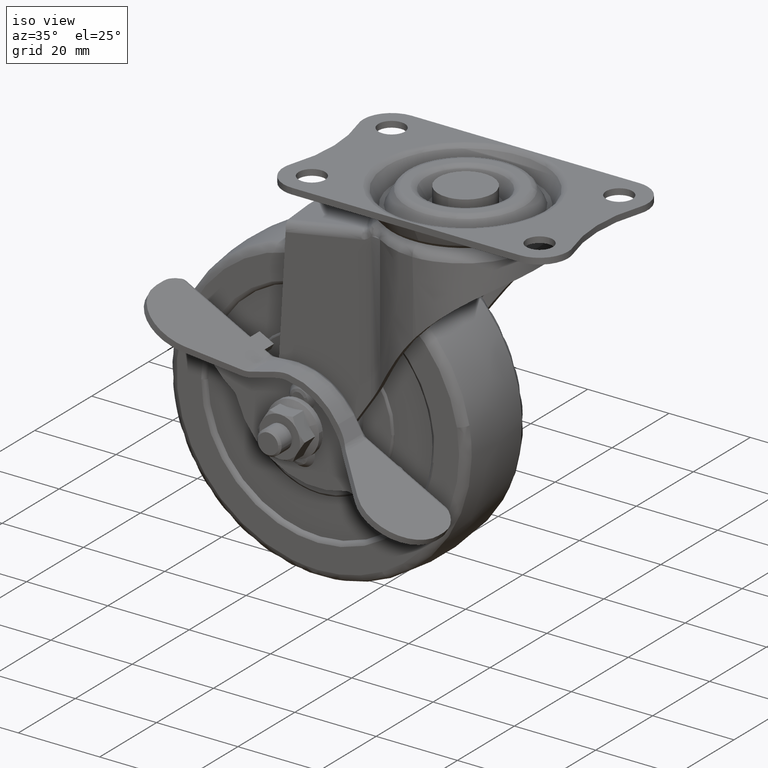
[diagram: clean part render]
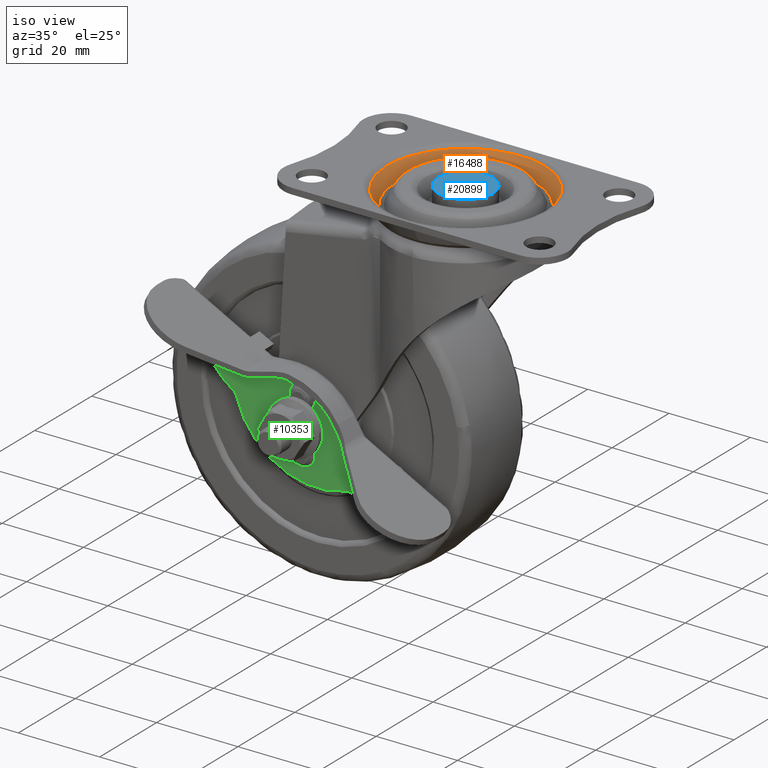
[diagram: same view with three faces highlighted in distinct colors, each labeled with its STEP entity id]
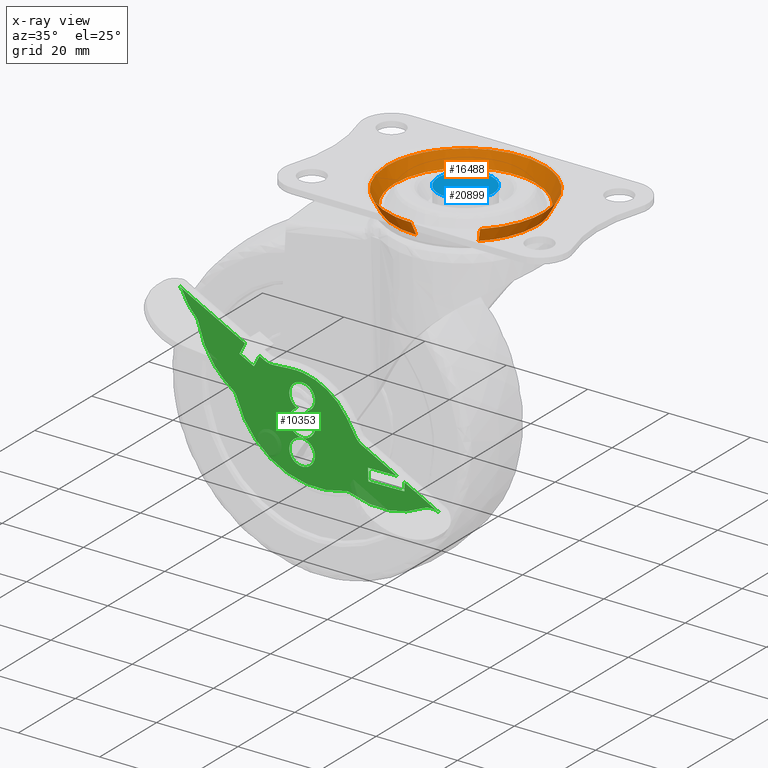
[diagram: x-ray of the same camera — body ghosted, the three highlighted faces saturated]
A machine part, iso view with three faces highlighted in distinct colors.
The next image is the same camera in x-ray (body ghosted, the three faces saturated) — at least one of them is partly hidden behind the body in this view.
Their STEP definitions:

[orange] entity #16488 — the highlighted face is a freeform B-spline surface patch.
#16318=CARTESIAN_POINT('',(12.036305669616750,-12.638677650356513,-2.887699195756595));
#16319=CARTESIAN_POINT('',(17.518445288866410,-7.417822272425098,-2.887699195756596));
#16320=CARTESIAN_POINT('',(17.452381792242459,0.152304628534755,-2.887699195756596));
#16321=CARTESIAN_POINT('',(17.300077163707716,17.604686420777217,-2.887699195756596));
#16322=CARTESIAN_POINT('',(-0.152304628534755,17.452381792242459,-2.887699195756596));
#16323=CARTESIAN_POINT('',(-17.604686420777217,17.300077163707716,-2.887699195756596));
#16324=CARTESIAN_POINT('',(-17.452381792242459,-0.152304628534755,-2.887699195756596));
#16325=CARTESIAN_POINT('',(-17.300077163707716,-17.604686420777217,-2.887699195756596));
#16326=CARTESIAN_POINT('',(0.152304628534755,-17.452381792242459,-2.887699195756596));
#16327=CARTESIAN_POINT('',(13.397120518879440,-14.067596181817935,0.797891420198383));
#16328=CARTESIAN_POINT('',(19.499066348139038,-8.256475175947527,0.797891420198383));
#16329=CARTESIAN_POINT('',(19.425533766758701,0.169524064947434,0.797891420198383));
#16330=CARTESIAN_POINT('',(19.256009701811269,19.595057831706143,0.797891420198383));
#16331=CARTESIAN_POINT('',(-0.169524064947434,19.425533766758701,0.797891420198383));
#16332=CARTESIAN_POINT('',(-19.595057831706143,19.256009701811269,0.797891420198383));
#16333=CARTESIAN_POINT('',(-19.425533766758701,-0.169524064947434,0.797891420198383));
#16334=CARTESIAN_POINT('',(-19.256009701811269,-19.595057831706143,0.797891420198383));
#16335=CARTESIAN_POINT('',(0.169524064947434,-19.425533766758701,0.797891420198383));
#16343=(BOUNDED_SURFACE()B_SPLINE_SURFACE(2,1,((#16318,#16327),(#16319,#16328),(#16320,#16329),(#16321,#16330),(#16322,#16331),(#16323,#16332),(#16324,#16333),(#16325,#16334),(#16326,#16335)),.UNSPECIFIED.,.F.,.F.,.U.)B_SPLINE_SURFACE_WITH_KNOTS((3,2,2,2,3),(2,2),(0.0,16.736981941445531,48.923485674994623,81.109989408543711,113.296493142092800),(0.0,4.180574531322593),.UNSPECIFIED.)GEOMETRIC_REPRESENTATION_ITEM()RATIONAL_B_SPLINE_SURFACE(((0.853787705168325,0.853787705168325),(0.847695526217005,0.847695526217005),(1.0,1.0),(0.707106781186548,0.707106781186548),(1.0,1.0),(0.707106781186548,0.707106781186548),(1.0,1.0),(0.707106781186548,0.707106781186548),(1.0,1.0)))REPRESENTATION_ITEM('')SURFACE());
#16344=CARTESIAN_POINT('',(13.363929755358660,-14.032744344994819,0.707998539736854));
#16345=VERTEX_POINT('',#16344);
#16346=CARTESIAN_POINT('',(19.378145740966652,0.0,0.707998539736826));
#16347=VERTEX_POINT('',#16346);
#16348=CARTESIAN_POINT('',(13.363929755358663,-14.032744344994814,0.707998539736854));
#16349=CARTESIAN_POINT('',(19.378145740966652,-8.305171890936085,0.707998539736826));
#16350=CARTESIAN_POINT('',(19.378145740966652,0.0,0.707998539736826));
#16358=(BOUNDED_CURVE()B_SPLINE_CURVE(2,(#16348,#16349,#16350),.UNSPECIFIED.,.F.,.U.)B_SPLINE_CURVE_WITH_KNOTS((3,3),(0.371317023849546,0.500000000000000),.UNSPECIFIED.)CURVE()GEOMETRIC_REPRESENTATION_ITEM()RATIONAL_B_SPLINE_CURVE((0.853680523245776,0.849238515635195,1.0))REPRESENTATION_ITEM(''));
#16359=EDGE_CURVE('',#16345,#16347,#16358,.T.);
#16360=ORIENTED_EDGE('',*,*,#16359,.T.);
#16361=CARTESIAN_POINT('',(7.086251146121231,18.036008036708530,0.707998966150701));
#16362=VERTEX_POINT('',#16361);
#16363=CARTESIAN_POINT('',(19.378145740966652,0.0,0.707998539736826));
#16364=CARTESIAN_POINT('',(19.378145740966655,13.206588110543299,0.707998539736826));
#16365=CARTESIAN_POINT('',(7.086251146121231,18.036008036708530,0.707998966150701));
#16373=(BOUNDED_CURVE()B_SPLINE_CURVE(2,(#16363,#16364,#16365),.UNSPECIFIED.,.F.,.U.)B_SPLINE_CURVE_WITH_KNOTS((3,3),(0.500000000000000,0.687908131197074),.UNSPECIFIED.)CURVE()GEOMETRIC_REPRESENTATION_ITEM()RATIONAL_B_SPLINE_CURVE((1.0,0.779851930449874,0.890644759586209))REPRESENTATION_ITEM(''));
#16374=EDGE_CURVE('',#16347,#16362,#16373,.T.);
#16375=ORIENTED_EDGE('',*,*,#16374,.T.);
#16376=CARTESIAN_POINT('',(-17.097168172810811,9.121369506637507,0.707998966144562));
#16377=VERTEX_POINT('',#16376);
#16378=CARTESIAN_POINT('',(7.086251146121232,18.036008036708527,0.707998966150701));
#16379=CARTESIAN_POINT('',(3.670226178802361,19.378145740966652,0.707998539736826));
#16380=CARTESIAN_POINT('',(0.0,19.378145740966652,0.707998539736826));
#16381=CARTESIAN_POINT('',(-11.625159623237881,19.378145740966648,0.707998539736826));
#16382=CARTESIAN_POINT('',(-17.097168172810818,9.121369506637507,0.707998966144562));
#16390=(BOUNDED_CURVE()B_SPLINE_CURVE(2,(#16378,#16379,#16380,#16381,#16382),.UNSPECIFIED.,.F.,.U.)B_SPLINE_CURVE_WITH_KNOTS((3,2,3),(0.687908131197074,0.750000000000000,0.919885466176732),.UNSPECIFIED.)CURVE()GEOMETRIC_REPRESENTATION_ITEM()RATIONAL_B_SPLINE_CURVE((0.890644759586209,0.927254850736674,1.0,0.800966795927492,0.872436381123038))REPRESENTATION_ITEM(''));
#16391=EDGE_CURVE('',#16362,#16377,#16390,.T.);
#16392=ORIENTED_EDGE('',*,*,#16391,.T.);
#16393=CARTESIAN_POINT('',(-19.378145740966652,0.0,0.707998539736826));
#16394=VERTEX_POINT('',#16393);
#16395=CARTESIAN_POINT('',(-17.097168172810811,9.121369506637507,0.707998966144562));
#16396=CARTESIAN_POINT('',(-19.378145740966652,4.845886370893225,0.707998539736826));
#16397=CARTESIAN_POINT('',(-19.378145740966652,0.0,0.707998539736826));
#16405=(BOUNDED_CURVE()B_SPLINE_CURVE(2,(#16395,#16396,#16397),.UNSPECIFIED.,.F.,.U.)B_SPLINE_CURVE_WITH_KNOTS((3,3),(0.919885466176732,1.0),.UNSPECIFIED.)CURVE()GEOMETRIC_REPRESENTATION_ITEM()RATIONAL_B_SPLINE_CURVE((0.872436381123038,0.906139985259055,1.0))REPRESENTATION_ITEM(''));
#16406=EDGE_CURVE('',#16377,#16394,#16405,.T.);
#16407=ORIENTED_EDGE('',*,*,#16406,.T.);
#16408=CARTESIAN_POINT('',(0.169104083966046,-19.377407881808011,0.707998542195917));
#16409=VERTEX_POINT('',#16408);
#16410=CARTESIAN_POINT('',(-19.378145740966652,0.0,0.707998539736826));
#16411=CARTESIAN_POINT('',(-19.378145740966659,-19.378145740966659,0.707998539736826));
#16412=CARTESIAN_POINT('',(0.0,-19.378145740966652,0.707998539736826));
#16413=CARTESIAN_POINT('',(0.084553655376278,-19.378145740966655,0.707998539736826));
#16414=CARTESIAN_POINT('',(0.169104083966046,-19.377407881808008,0.707998542195917));
#16422=(BOUNDED_CURVE()B_SPLINE_CURVE(2,(#16410,#16411,#16412,#16413,#16414),.UNSPECIFIED.,.F.,.U.)B_SPLINE_CURVE_WITH_KNOTS((3,2,3),(0.0,0.250000000000000,0.251539894466854),.UNSPECIFIED.)CURVE()GEOMETRIC_REPRESENTATION_ITEM()RATIONAL_B_SPLINE_CURVE((1.0,0.707106781186548,1.0,0.998195901411880,0.996414027795228))REPRESENTATION_ITEM(''));
#16423=EDGE_CURVE('',#16394,#16409,#16422,.T.);
#16424=ORIENTED_EDGE('',*,*,#16423,.T.);
#16425=CARTESIAN_POINT('',(0.152714371222914,-17.499333653623111,-2.799999240587877));
#16426=VERTEX_POINT('',#16425);
#16427=CARTESIAN_POINT('',(0.152714371222914,-17.499333653623111,-2.799999240587877));
#16428=CARTESIAN_POINT('',(0.169104083966046,-19.377407881808011,0.707998542195917));
#16429=QUASI_UNIFORM_CURVE('',1,(#16427,#16428),.UNSPECIFIED.,.F.,.U.);
#16430=EDGE_CURVE('',#16426,#16409,#16429,.T.);
#16431=ORIENTED_EDGE('',*,*,#16430,.F.);
#16432=CARTESIAN_POINT('',(-17.500000000000000,0.0,-2.799999240588125));
#16433=VERTEX_POINT('',#16432);
#16434=CARTESIAN_POINT('',(0.152714371222914,-17.499333653623115,-2.799999240587877));
#16435=CARTESIAN_POINT('',(0.076358639363640,-17.500000000000000,-2.799999240588126));
#16436=CARTESIAN_POINT('',(0.0,-17.500000000000000,-2.799999240588125));
#16437=CARTESIAN_POINT('',(-17.499999999999996,-17.499999999999996,-2.799999240588126));
#16438=CARTESIAN_POINT('',(-17.500000000000000,0.0,-2.799999240588125));
#16446=(BOUNDED_CURVE()B_SPLINE_CURVE(2,(#16434,#16435,#16436,#16437,#16438),.UNSPECIFIED.,.F.,.U.)B_SPLINE_CURVE_WITH_KNOTS((3,2,3),(0.748460105664985,0.750000000000000,1.0),.UNSPECIFIED.)CURVE()GEOMETRIC_REPRESENTATION_ITEM()RATIONAL_B_SPLINE_CURVE((0.996414028100342,0.998195901566340,1.0,0.707106781186548,1.0))REPRESENTATION_ITEM(''));
#16447=EDGE_CURVE('',#16426,#16433,#16446,.T.);
#16448=ORIENTED_EDGE('',*,*,#16447,.T.);
#16449=CARTESIAN_POINT('',(17.500000000000000,0.0,-2.799999240588125));
#16450=VERTEX_POINT('',#16449);
#16451=CARTESIAN_POINT('',(-17.500000000000000,0.0,-2.799999240588125));
#16452=CARTESIAN_POINT('',(-17.499999999999996,17.499999999999996,-2.799999240588126));
#16453=CARTESIAN_POINT('',(0.0,17.500000000000000,-2.799999240588125));
#16454=CARTESIAN_POINT('',(17.499999999999996,17.499999999999996,-2.799999240588126));
#16455=CARTESIAN_POINT('',(17.500000000000000,0.0,-2.799999240588125));
#16463=(BOUNDED_CURVE()B_SPLINE_CURVE(2,(#16451,#16452,#16453,#16454,#16455),.UNSPECIFIED.,.F.,.U.)B_SPLINE_CURVE_WITH_KNOTS((3,2,3),(0.0,0.250000000000000,0.500000000000000),.UNSPECIFIED.)CURVE()GEOMETRIC_REPRESENTATION_ITEM()RATIONAL_B_SPLINE_CURVE((1.0,0.707106781186548,1.0,0.707106781186548,1.0))REPRESENTATION_ITEM(''));
#16464=EDGE_CURVE('',#16433,#16450,#16463,.T.);
#16465=ORIENTED_EDGE('',*,*,#16464,.T.);
#16466=CARTESIAN_POINT('',(12.068686748718850,-12.672679281087230,-2.799999240588120));
#16467=VERTEX_POINT('',#16466);
#16468=CARTESIAN_POINT('',(17.500000000000000,0.0,-2.799999240588125));
#16469=CARTESIAN_POINT('',(17.500000000000004,-7.500227835740320,-2.799999240588125));
#16470=CARTESIAN_POINT('',(12.068686748718845,-12.672679281087259,-2.799999240588126));
#16478=(BOUNDED_CURVE()B_SPLINE_CURVE(2,(#16468,#16469,#16470),.UNSPECIFIED.,.F.,.U.)B_SPLINE_CURVE_WITH_KNOTS((3,3),(0.500000000000000,0.628682976150492),.UNSPECIFIED.)CURVE()GEOMETRIC_REPRESENTATION_ITEM()RATIONAL_B_SPLINE_CURVE((1.0,0.849238515635151,0.853680523245779))REPRESENTATION_ITEM(''));
#16479=EDGE_CURVE('',#16450,#16467,#16478,.T.);
#16480=ORIENTED_EDGE('',*,*,#16479,.T.);
#16481=CARTESIAN_POINT('',(12.068686748718850,-12.672679281087230,-2.799999240588120));
#16482=CARTESIAN_POINT('',(13.363929755358660,-14.032744344994819,0.707998539736854));
#16483=QUASI_UNIFORM_CURVE('',1,(#16481,#16482),.UNSPECIFIED.,.F.,.U.);
#16484=EDGE_CURVE('',#16467,#16345,#16483,.T.);
#16485=ORIENTED_EDGE('',*,*,#16484,.T.);
#16486=EDGE_LOOP('',(#16360,#16375,#16392,#16407,#16424,#16431,#16448,#16465,#16480,#16485));
#16487=FACE_OUTER_BOUND('',#16486,.T.);
#16488=ADVANCED_FACE('',(#16487),#16343,.F.);

[blue] entity #20899 — the highlighted face is a freeform B-spline surface patch.
#20048=CARTESIAN_POINT('',(-0.796731092696689,6.702814301913051,1.500000000000000));
#20049=VERTEX_POINT('',#20048);
#20050=CARTESIAN_POINT('',(6.750000000000000,-1.421085E-014,1.500000000000000));
#20051=VERTEX_POINT('',#20050);
#20052=CARTESIAN_POINT('',(-0.796731092696689,6.702814301913051,1.500000000000000));
#20053=CARTESIAN_POINT('',(-0.399762816506610,6.749999999999986,1.500000000000000));
#20054=CARTESIAN_POINT('',(0.0,6.749999999999986,1.500000000000000));
#20055=CARTESIAN_POINT('',(6.750000000000000,6.749999999999986,1.500000000000000));
#20056=CARTESIAN_POINT('',(6.750000000000000,-1.421085E-014,1.500000000000000));
#20064=(BOUNDED_CURVE()B_SPLINE_CURVE(2,(#20052,#20053,#20054,#20055,#20056),.UNSPECIFIED.,.F.,.U.)B_SPLINE_CURVE_WITH_KNOTS((3,2,3),(0.229562473073719,0.250000000000000,0.500000000000000),.UNSPECIFIED.)CURVE()GEOMETRIC_REPRESENTATION_ITEM()RATIONAL_B_SPLINE_CURVE((0.956026753321694,0.976055947815900,1.0,0.707106781186548,1.0))REPRESENTATION_ITEM(''));
#20065=EDGE_CURVE('',#20049,#20051,#20064,.T.);
#20067=CARTESIAN_POINT('',(0.412077641928033,-6.737409889343471,1.500000000000000));
#20068=VERTEX_POINT('',#20067);
#20069=CARTESIAN_POINT('',(6.750000000000000,-1.421085E-014,1.500000000000000));
#20070=CARTESIAN_POINT('',(6.749999999999999,-6.349765951485536,1.500000000000000));
#20071=CARTESIAN_POINT('',(0.412077641928033,-6.737409889343471,1.500000000000000));
#20079=(BOUNDED_CURVE()B_SPLINE_CURVE(2,(#20069,#20070,#20071),.UNSPECIFIED.,.F.,.U.)B_SPLINE_CURVE_WITH_KNOTS((3,3),(0.500000000000000,0.739332962238499),.UNSPECIFIED.)CURVE()GEOMETRIC_REPRESENTATION_ITEM()RATIONAL_B_SPLINE_CURVE((1.0,0.719603993287231,0.976072041665766))REPRESENTATION_ITEM(''));
#20080=EDGE_CURVE('',#20051,#20068,#20079,.T.);
#20147=CARTESIAN_POINT('',(-6.750000000000000,-1.421085E-014,1.500000000000000));
#20148=VERTEX_POINT('',#20147);
#20149=CARTESIAN_POINT('',(-6.750000000000000,-1.421085E-014,1.500000000000000));
#20150=CARTESIAN_POINT('',(-6.750000000000000,5.995178034384611,1.500000000000000));
#20151=CARTESIAN_POINT('',(-0.796731092696689,6.702814301913051,1.500000000000000));
#20159=(BOUNDED_CURVE()B_SPLINE_CURVE(2,(#20149,#20150,#20151),.UNSPECIFIED.,.F.,.U.)B_SPLINE_CURVE_WITH_KNOTS((3,3),(0.0,0.229562473073719),.UNSPECIFIED.)CURVE()GEOMETRIC_REPRESENTATION_ITEM()RATIONAL_B_SPLINE_CURVE((1.0,0.731050833370648,0.956026753321694))REPRESENTATION_ITEM(''));
#20160=EDGE_CURVE('',#20148,#20049,#20159,.T.);
#20194=CARTESIAN_POINT('',(0.412077641928033,-6.737409889343471,1.500000000000000));
#20195=CARTESIAN_POINT('',(0.206231152333413,-6.750000000000014,1.500000000000001));
#20196=CARTESIAN_POINT('',(0.0,-6.750000000000014,1.500000000000000));
#20197=CARTESIAN_POINT('',(-6.750000000000000,-6.750000000000014,1.500000000000000));
#20198=CARTESIAN_POINT('',(-6.750000000000000,-1.421085E-014,1.500000000000000));
#20206=(BOUNDED_CURVE()B_SPLINE_CURVE(2,(#20194,#20195,#20196,#20197,#20198),.UNSPECIFIED.,.F.,.U.)B_SPLINE_CURVE_WITH_KNOTS((3,2,3),(0.739332962238498,0.750000000000000,1.0),.UNSPECIFIED.)CURVE()GEOMETRIC_REPRESENTATION_ITEM()RATIONAL_B_SPLINE_CURVE((0.976072041665765,0.987502787899316,1.0,0.707106781186548,1.0))REPRESENTATION_ITEM(''));
#20207=EDGE_CURVE('',#20068,#20148,#20206,.T.);
#20888=CARTESIAN_POINT('',(-7.424324973834381,-7.424160811562288,1.500000000000000));
#20889=CARTESIAN_POINT('',(7.424325335932597,-7.424160811562288,1.500000000000000));
#20890=CARTESIAN_POINT('',(-7.424324973834381,7.424202211458406,1.500000000000000));
#20891=CARTESIAN_POINT('',(7.424325335932597,7.424202211458406,1.500000000000000));
#20892=B_SPLINE_SURFACE_WITH_KNOTS('',1,1,((#20888,#20890),(#20889,#20891)),.UNSPECIFIED.,.F.,.F.,.U.,(2,2),(2,2),(0.0,14.848650309766979),(0.0,14.848363023020690),.UNSPECIFIED.);
#20893=ORIENTED_EDGE('',*,*,#20207,.F.);
#20894=ORIENTED_EDGE('',*,*,#20080,.F.);
#20895=ORIENTED_EDGE('',*,*,#20065,.F.);
#20896=ORIENTED_EDGE('',*,*,#20160,.F.);
#20897=EDGE_LOOP('',(#20893,#20894,#20895,#20896));
#20898=FACE_OUTER_BOUND('',#20897,.T.);
#20899=ADVANCED_FACE('',(#20898),#20892,.T.);

[green] entity #10353 — the highlighted face is a freeform B-spline surface patch.
#6914=CARTESIAN_POINT('',(-26.808582526603271,-16.0,-55.400035469944498));
#6915=VERTEX_POINT('',#6914);
#6916=CARTESIAN_POINT('',(-31.492239594338439,-16.0,-50.914032959960103));
#6917=VERTEX_POINT('',#6916);
#6918=CARTESIAN_POINT('',(-26.808582526603278,-15.999999999999996,-55.400035469944498));
#6919=CARTESIAN_POINT('',(-27.122390084676674,-16.000000000000007,-55.686565493596206));
#6920=CARTESIAN_POINT('',(-27.499317139292959,-16.0,-55.882781276703788));
#6921=CARTESIAN_POINT('',(-29.863658807154184,-16.000000000000004,-57.113579507320466));
#6922=CARTESIAN_POINT('',(-31.533359656224910,-16.0,-55.035822331545013));
#6923=CARTESIAN_POINT('',(-33.203060505295639,-16.000000000000004,-52.958065155769532));
#6924=CARTESIAN_POINT('',(-31.492239594338361,-16.0,-50.914032959960181));
#6932=(BOUNDED_CURVE()B_SPLINE_CURVE(2,(#6918,#6919,#6920,#6921,#6922,#6923,#6924),.UNSPECIFIED.,.F.,.U.)B_SPLINE_CURVE_WITH_KNOTS((3,2,2,3),(0.450757098557296,0.500000000000000,0.750000000000000,1.0),.UNSPECIFIED.)CURVE()GEOMETRIC_REPRESENTATION_ITEM()RATIONAL_B_SPLINE_CURVE((0.928254768791798,0.955328334761395,1.0,0.773207589673700,1.0,0.773207589673700,1.0))REPRESENTATION_ITEM(''));
#6933=EDGE_CURVE('',#6915,#6917,#6932,.T.);
#6991=CARTESIAN_POINT('',(-25.760018665370559,-16.0,-53.254988061156403));
#6992=VERTEX_POINT('',#6991);
#6998=CARTESIAN_POINT('',(-29.279230686288798,-16.0,-49.762013568942898));
#6999=VERTEX_POINT('',#6998);
#7000=CARTESIAN_POINT('',(-29.279230686288798,-16.0,-49.762013568942869));
#7001=CARTESIAN_POINT('',(-26.623570952135946,-16.000000000000004,-49.533000068744549));
#7002=CARTESIAN_POINT('',(-25.879273211783840,-16.0,-52.092491557415833));
#7003=CARTESIAN_POINT('',(-25.713415775583979,-16.0,-52.662842202421885));
#7004=CARTESIAN_POINT('',(-25.760018665370552,-16.000000000000004,-53.254988061156411));
#7012=(BOUNDED_CURVE()B_SPLINE_CURVE(2,(#7000,#7001,#7002,#7003,#7004),.UNSPECIFIED.,.F.,.U.)B_SPLINE_CURVE_WITH_KNOTS((3,2,3),(0.0,0.250000000000000,0.317629352993663),.UNSPECIFIED.)CURVE()GEOMETRIC_REPRESENTATION_ITEM()RATIONAL_B_SPLINE_CURVE((1.0,0.773207589673700,1.0,0.938648704103036,0.910490595780748))REPRESENTATION_ITEM(''));
#7013=EDGE_CURVE('',#6999,#6992,#7012,.T.);
#7073=CARTESIAN_POINT('',(-25.760018665370552,-16.000000000000004,-53.254988061156411));
#7074=CARTESIAN_POINT('',(-25.860723857430365,-16.000000000000004,-54.534568849051155));
#7075=CARTESIAN_POINT('',(-26.808582526603271,-16.0,-55.400035469944505));
#7083=(BOUNDED_CURVE()B_SPLINE_CURVE(2,(#7073,#7074,#7075),.UNSPECIFIED.,.F.,.U.)B_SPLINE_CURVE_WITH_KNOTS((3,3),(0.317629352993663,0.450757098557296),.UNSPECIFIED.)CURVE()GEOMETRIC_REPRESENTATION_ITEM()RATIONAL_B_SPLINE_CURVE((0.910490595780748,0.855061624271379,0.928254768791798))REPRESENTATION_ITEM(''));
#7084=EDGE_CURVE('',#6992,#6915,#7083,.T.);
#7546=CARTESIAN_POINT('',(2.275743760162005,-16.0,-49.192040147086999));
#7547=VERTEX_POINT('',#7546);
#7548=CARTESIAN_POINT('',(6.077288059649920,-16.0,-47.099994405267502));
#7549=VERTEX_POINT('',#7548);
#7550=CARTESIAN_POINT('',(2.275743760162005,-16.0,-49.192040147086999));
#7551=CARTESIAN_POINT('',(3.600876472414611,-15.999999999999996,-47.099996348106416));
#7552=CARTESIAN_POINT('',(6.077288059649920,-16.0,-47.099994405267502));
#7560=(BOUNDED_CURVE()B_SPLINE_CURVE(2,(#7550,#7551,#7552),.UNSPECIFIED.,.F.,.U.)CURVE()GEOMETRIC_REPRESENTATION_ITEM()QUASI_UNIFORM_CURVE()RATIONAL_B_SPLINE_CURVE((1.0,0.876099836313436,1.0))REPRESENTATION_ITEM(''));
#7561=EDGE_CURVE('',#7547,#7549,#7560,.T.);
#7624=CARTESIAN_POINT('',(-66.530678117752501,-16.0,-47.099988604228301));
#7625=VERTEX_POINT('',#7624);
#7626=CARTESIAN_POINT('',(-64.604541877868002,-16.0,-47.799989141027503));
#7627=VERTEX_POINT('',#7626);
#7628=CARTESIAN_POINT('',(-66.530678117752501,-16.0,-47.099988604228329));
#7629=CARTESIAN_POINT('',(-65.440412211166233,-16.0,-47.099988760330248));
#7630=CARTESIAN_POINT('',(-64.604541877868058,-16.0,-47.799989141027567));
#7638=(BOUNDED_CURVE()B_SPLINE_CURVE(2,(#7628,#7629,#7630),.UNSPECIFIED.,.F.,.U.)CURVE()GEOMETRIC_REPRESENTATION_ITEM()QUASI_UNIFORM_CURVE()RATIONAL_B_SPLINE_CURVE((1.0,0.939858122181283,1.0))REPRESENTATION_ITEM(''));
#7639=EDGE_CURVE('',#7625,#7627,#7638,.T.);
#8311=CARTESIAN_POINT('',(-3.777901921407860,-16.0,-47.099993892517503));
#8312=VERTEX_POINT('',#8311);
#8333=CARTESIAN_POINT('',(-2.807771750129955,-16.0,-48.887073215302387));
#8334=VERTEX_POINT('',#8333);
#8348=CARTESIAN_POINT('',(-3.777901921407860,-16.0,-47.099993892517503));
#8349=CARTESIAN_POINT('',(-2.807771750129955,-16.0,-48.887073215302387));
#8350=QUASI_UNIFORM_CURVE('',1,(#8348,#8349),.UNSPECIFIED.,.F.,.U.);
#8351=EDGE_CURVE('',#8312,#8334,#8350,.T.);
#8372=CARTESIAN_POINT('',(-10.592231666412140,-16.0,-53.112922012349699));
#8373=VERTEX_POINT('',#8372);
#8394=CARTESIAN_POINT('',(-12.023508399752380,-16.0,-50.476363402935412));
#8395=VERTEX_POINT('',#8394);
#8409=CARTESIAN_POINT('',(-10.592231666412140,-16.0,-53.112922012349699));
#8410=CARTESIAN_POINT('',(-12.023508399752380,-16.0,-50.476363402935412));
#8411=QUASI_UNIFORM_CURVE('',1,(#8409,#8410),.UNSPECIFIED.,.F.,.U.);
#8412=EDGE_CURVE('',#8373,#8395,#8411,.T.);
#8682=CARTESIAN_POINT('',(-5.803881771787300,-16.0,-47.099997298959202));
#8683=VERTEX_POINT('',#8682);
#8703=CARTESIAN_POINT('',(-43.899998974616402,-16.0,-50.099990126506199));
#8704=VERTEX_POINT('',#8703);
#8705=CARTESIAN_POINT('',(-47.899996659844000,-16.0,-50.099991185185601));
#8706=VERTEX_POINT('',#8705);
#8707=CARTESIAN_POINT('',(-43.899998974616402,-16.0,-50.099990126506199));
#8708=CARTESIAN_POINT('',(-47.899996659844000,-16.0,-50.099991185185601));
#8709=QUASI_UNIFORM_CURVE('',1,(#8707,#8708),.UNSPECIFIED.,.F.,.U.);
#8710=EDGE_CURVE('',#8704,#8706,#8709,.T.);
#8739=CARTESIAN_POINT('',(-43.899996840231850,-16.0,-47.099991844440098));
#8740=VERTEX_POINT('',#8739);
#8741=CARTESIAN_POINT('',(-43.899996840231850,-16.0,-47.099991844440098));
#8742=CARTESIAN_POINT('',(-43.899998974616402,-16.0,-50.099990126506199));
#8743=QUASI_UNIFORM_CURVE('',1,(#8741,#8742),.UNSPECIFIED.,.F.,.U.);
#8744=EDGE_CURVE('',#8740,#8704,#8743,.T.);
#8765=CARTESIAN_POINT('',(-47.899996834202902,-16.0,-47.099991271728797));
#8766=VERTEX_POINT('',#8765);
#8767=CARTESIAN_POINT('',(-47.899996659844000,-16.0,-50.099991185185601));
#8768=CARTESIAN_POINT('',(-47.899996834202902,-16.0,-47.099991271728797));
#8769=QUASI_UNIFORM_CURVE('',1,(#8767,#8768),.UNSPECIFIED.,.F.,.U.);
#8770=EDGE_CURVE('',#8706,#8766,#8769,.T.);
#8834=CARTESIAN_POINT('',(-25.998635266198150,-16.0,-55.609620024513177));
#8835=VERTEX_POINT('',#8834);
#8836=CARTESIAN_POINT('',(-25.998635266198150,-16.0,-61.921513559737022));
#8837=VERTEX_POINT('',#8836);
#8838=CARTESIAN_POINT('',(-25.998635266198150,-16.0,-55.609620024513177));
#8839=CARTESIAN_POINT('',(-29.154582033810058,-15.999999999999998,-55.609620024513191));
#8840=CARTESIAN_POINT('',(-29.154582033810069,-16.0,-58.765566792125099));
#8841=CARTESIAN_POINT('',(-29.154582033810058,-15.999999999999998,-61.921513559737015));
#8842=CARTESIAN_POINT('',(-25.998635266198150,-16.0,-61.921513559737022));
#8850=(BOUNDED_CURVE()B_SPLINE_CURVE(2,(#8838,#8839,#8840,#8841,#8842),.UNSPECIFIED.,.F.,.U.)B_SPLINE_CURVE_WITH_KNOTS((3,2,3),(0.0,0.250000000000000,0.500000000000000),.UNSPECIFIED.)CURVE()GEOMETRIC_REPRESENTATION_ITEM()RATIONAL_B_SPLINE_CURVE((1.0,0.707106781186548,1.0,0.707106781186548,1.0))REPRESENTATION_ITEM(''));
#8851=EDGE_CURVE('',#8835,#8837,#8850,.T.);
#8853=CARTESIAN_POINT('',(-25.998635266198150,-16.0,-61.921513559737022));
#8854=CARTESIAN_POINT('',(-22.842688498586227,-15.999999999999998,-61.921513559737015));
#8855=CARTESIAN_POINT('',(-22.842688498586231,-16.0,-58.765566792125099));
#8856=CARTESIAN_POINT('',(-22.842688498586227,-15.999999999999998,-55.609620024513191));
#8857=CARTESIAN_POINT('',(-25.998635266198150,-16.0,-55.609620024513177));
#8865=(BOUNDED_CURVE()B_SPLINE_CURVE(2,(#8853,#8854,#8855,#8856,#8857),.UNSPECIFIED.,.F.,.U.)B_SPLINE_CURVE_WITH_KNOTS((3,2,3),(0.500000000000000,0.750000000000000,1.0),.UNSPECIFIED.)CURVE()GEOMETRIC_REPRESENTATION_ITEM()RATIONAL_B_SPLINE_CURVE((1.0,0.707106781186548,1.0,0.707106781186548,1.0))REPRESENTATION_ITEM(''));
#8866=EDGE_CURVE('',#8837,#8835,#8865,.T.);
#9483=CARTESIAN_POINT('',(-15.504377828213100,-16.0,-47.099993282407503));
#9484=VERTEX_POINT('',#9483);
#9492=CARTESIAN_POINT('',(-17.597605191460850,-16.0,-46.505894541268702));
#9493=VERTEX_POINT('',#9492);
#9499=CARTESIAN_POINT('',(-17.597605191460850,-16.0,-46.505894541268688));
#9500=CARTESIAN_POINT('',(-16.634951958931463,-16.000000000000004,-47.098767311729965));
#9501=CARTESIAN_POINT('',(-15.504377828213100,-16.0,-47.099993282407468));
#9509=(BOUNDED_CURVE()B_SPLINE_CURVE(2,(#9499,#9500,#9501),.UNSPECIFIED.,.F.,.U.)CURVE()GEOMETRIC_REPRESENTATION_ITEM()QUASI_UNIFORM_CURVE()RATIONAL_B_SPLINE_CURVE((1.0,0.962299471320009,1.0))REPRESENTATION_ITEM(''));
#9510=EDGE_CURVE('',#9493,#9484,#9509,.T.);
#9523=CARTESIAN_POINT('',(-21.134027603965201,-16.0,-44.327903341176047));
#9524=VERTEX_POINT('',#9523);
#9530=CARTESIAN_POINT('',(-21.134027603965201,-16.0,-44.327903341176047));
#9531=CARTESIAN_POINT('',(-17.597605191460850,-16.0,-46.505894541268702));
#9532=QUASI_UNIFORM_CURVE('',1,(#9530,#9531),.UNSPECIFIED.,.F.,.U.);
#9533=EDGE_CURVE('',#9524,#9493,#9532,.T.);
#9554=CARTESIAN_POINT('',(-36.865975888751500,-16.0,-44.327897952493451));
#9555=VERTEX_POINT('',#9554);
#9561=CARTESIAN_POINT('',(-21.134027603965201,-16.0,-44.327903341176047));
#9562=CARTESIAN_POINT('',(-29.000000930955014,-16.000000000000007,-39.483470206234450));
#9563=CARTESIAN_POINT('',(-36.865975888751500,-16.0,-44.327897952493451));
#9571=(BOUNDED_CURVE()B_SPLINE_CURVE(2,(#9561,#9562,#9563),.UNSPECIFIED.,.F.,.U.)CURVE()GEOMETRIC_REPRESENTATION_ITEM()QUASI_UNIFORM_CURVE()RATIONAL_B_SPLINE_CURVE((1.0,0.851473139312523,1.0))REPRESENTATION_ITEM(''));
#9572=EDGE_CURVE('',#9524,#9555,#9571,.T.);
#9586=CARTESIAN_POINT('',(-40.402407463981952,-16.0,-46.505887199888598));
#9587=VERTEX_POINT('',#9586);
#9593=CARTESIAN_POINT('',(-40.402407463981952,-16.0,-46.505887199888598));
#9594=CARTESIAN_POINT('',(-36.865975888751500,-16.0,-44.327897952493451));
#9595=QUASI_UNIFORM_CURVE('',1,(#9593,#9594),.UNSPECIFIED.,.F.,.U.);
#9596=EDGE_CURVE('',#9587,#9555,#9595,.T.);
#9617=CARTESIAN_POINT('',(-42.499998825408952,-16.0,-47.099992044888801));
#9618=VERTEX_POINT('',#9617);
#9624=CARTESIAN_POINT('',(-42.499998825408952,-16.0,-47.099992044888801));
#9625=CARTESIAN_POINT('',(-41.367067843727355,-15.999999999999996,-47.099992902422080));
#9626=CARTESIAN_POINT('',(-40.402407463981952,-16.0,-46.505887199888598));
#9634=(BOUNDED_CURVE()B_SPLINE_CURVE(2,(#9624,#9625,#9626),.UNSPECIFIED.,.F.,.U.)CURVE()GEOMETRIC_REPRESENTATION_ITEM()QUASI_UNIFORM_CURVE()RATIONAL_B_SPLINE_CURVE((1.0,0.962152105659305,1.0))REPRESENTATION_ITEM(''));
#9635=EDGE_CURVE('',#9618,#9587,#9634,.T.);
#9785=CARTESIAN_POINT('',(-12.558907731843060,-16.0,-58.383514182393398));
#9786=VERTEX_POINT('',#9785);
#9787=CARTESIAN_POINT('',(-12.558907731843060,-16.0,-58.383514182393412));
#9788=CARTESIAN_POINT('',(-2.913279146842478,-16.0,-57.384163980196178));
#9789=CARTESIAN_POINT('',(2.275743760161961,-16.0,-49.192040147086992));
#9797=(BOUNDED_CURVE()B_SPLINE_CURVE(2,(#9787,#9788,#9789),.UNSPECIFIED.,.F.,.U.)CURVE()GEOMETRIC_REPRESENTATION_ITEM()QUASI_UNIFORM_CURVE()RATIONAL_B_SPLINE_CURVE((1.0,0.899808979787183,1.0))REPRESENTATION_ITEM(''));
#9798=EDGE_CURVE('',#9786,#7547,#9797,.T.);
#9838=CARTESIAN_POINT('',(-14.106925262072680,-16.0,-59.141161822602797));
#9839=VERTEX_POINT('',#9838);
#9840=CARTESIAN_POINT('',(-12.558907731843060,-16.0,-58.383514182393398));
#9841=CARTESIAN_POINT('',(-13.472019886781137,-15.999999999999996,-58.478121836030141));
#9842=CARTESIAN_POINT('',(-14.106925262072680,-16.0,-59.141161822602797));
#9850=(BOUNDED_CURVE()B_SPLINE_CURVE(2,(#9840,#9841,#9842),.UNSPECIFIED.,.F.,.U.)CURVE()GEOMETRIC_REPRESENTATION_ITEM()QUASI_UNIFORM_CURVE()RATIONAL_B_SPLINE_CURVE((1.0,0.938714369057936,1.0))REPRESENTATION_ITEM(''));
#9851=EDGE_CURVE('',#9786,#9839,#9850,.T.);
#9875=CARTESIAN_POINT('',(-43.914847168723647,-16.0,-59.118383250534912));
#9876=VERTEX_POINT('',#9875);
#9900=CARTESIAN_POINT('',(-43.914847168723647,-16.0,-59.118383250534912));
#9901=CARTESIAN_POINT('',(-37.829106270078050,-16.0,-65.493254600002757));
#9902=CARTESIAN_POINT('',(-29.015753779283461,-16.0,-65.499989574198551));
#9903=CARTESIAN_POINT('',(-20.202401288488865,-16.0,-65.506724548394331));
#9904=CARTESIAN_POINT('',(-14.106925262072680,-16.0,-59.141161822602797));
#9912=(BOUNDED_CURVE()B_SPLINE_CURVE(2,(#9900,#9901,#9902,#9903,#9904),.UNSPECIFIED.,.F.,.U.)B_SPLINE_CURVE_WITH_KNOTS((3,2,3),(0.0,0.500000000000000,1.0),.UNSPECIFIED.)CURVE()GEOMETRIC_REPRESENTATION_ITEM()RATIONAL_B_SPLINE_CURVE((1.0,0.919528690102147,1.0,0.919528690102147,1.0))REPRESENTATION_ITEM(''));
#9913=EDGE_CURVE('',#9876,#9839,#9912,.T.);
#9948=CARTESIAN_POINT('',(-45.439462587460703,-16.0,-58.360817627816097));
#9949=VERTEX_POINT('',#9948);
#9950=CARTESIAN_POINT('',(-43.914847168723647,-16.0,-59.118383250534912));
#9951=CARTESIAN_POINT('',(-44.539986304078958,-15.999999999999996,-58.463546849420688));
#9952=CARTESIAN_POINT('',(-45.439462587460703,-16.0,-58.360817627816097));
#9960=(BOUNDED_CURVE()B_SPLINE_CURVE(2,(#9950,#9951,#9952),.UNSPECIFIED.,.F.,.U.)CURVE()GEOMETRIC_REPRESENTATION_ITEM()QUASI_UNIFORM_CURVE()RATIONAL_B_SPLINE_CURVE((1.0,0.940247724918278,1.0))REPRESENTATION_ITEM(''));
#9961=EDGE_CURVE('',#9876,#9949,#9960,.T.);
#9985=CARTESIAN_POINT('',(-58.580566651632402,-16.0,-51.238109884184503));
#9986=VERTEX_POINT('',#9985);
#10008=CARTESIAN_POINT('',(-58.580566651632402,-16.0,-51.238109884184503));
#10009=CARTESIAN_POINT('',(-53.444767560068463,-16.000000000000007,-57.446524642103022));
#10010=CARTESIAN_POINT('',(-45.439462587460703,-16.0,-58.360817627816097));
#10018=(BOUNDED_CURVE()B_SPLINE_CURVE(2,(#10008,#10009,#10010),.UNSPECIFIED.,.F.,.U.)CURVE()GEOMETRIC_REPRESENTATION_ITEM()QUASI_UNIFORM_CURVE()RATIONAL_B_SPLINE_CURVE((1.0,0.927556747545519,1.0))REPRESENTATION_ITEM(''));
#10019=EDGE_CURVE('',#9986,#9949,#10018,.T.);
#10054=CARTESIAN_POINT('',(-60.288964084798302,-16.0,-50.111504481992398));
#10055=VERTEX_POINT('',#10054);
#10056=CARTESIAN_POINT('',(-58.580566651632402,-16.0,-51.238109884184503));
#10057=CARTESIAN_POINT('',(-59.262562802235074,-15.999999999999998,-50.413676423478485));
#10058=CARTESIAN_POINT('',(-60.288964084798302,-16.0,-50.111504481992398));
#10066=(BOUNDED_CURVE()B_SPLINE_CURVE(2,(#10056,#10057,#10058),.UNSPECIFIED.,.F.,.U.)CURVE()GEOMETRIC_REPRESENTATION_ITEM()QUASI_UNIFORM_CURVE()RATIONAL_B_SPLINE_CURVE((1.0,0.956312378166762,1.0))REPRESENTATION_ITEM(''));
#10067=EDGE_CURVE('',#9986,#10055,#10066,.T.);
#10091=CARTESIAN_POINT('',(-64.604541877868002,-16.0,-47.799989141027503));
#10092=CARTESIAN_POINT('',(-62.687573615794278,-16.000000000000004,-49.405357126922731));
#10093=CARTESIAN_POINT('',(-60.288964084798302,-16.0,-50.111504481992398));
#10101=(BOUNDED_CURVE()B_SPLINE_CURVE(2,(#10091,#10092,#10093),.UNSPECIFIED.,.F.,.U.)CURVE()GEOMETRIC_REPRESENTATION_ITEM()QUASI_UNIFORM_CURVE()RATIONAL_B_SPLINE_CURVE((1.0,0.978973996095359,1.0))REPRESENTATION_ITEM(''));
#10102=EDGE_CURVE('',#7627,#10055,#10101,.T.);
#10145=CARTESIAN_POINT('',(-3.777901921407860,-16.0,-47.099993892517503));
#10146=CARTESIAN_POINT('',(6.077288059649920,-16.0,-47.099994405267502));
#10147=QUASI_UNIFORM_CURVE('',1,(#10145,#10146),.UNSPECIFIED.,.F.,.U.);
#10148=EDGE_CURVE('',#8312,#7549,#10147,.T.);
#10160=CARTESIAN_POINT('',(-15.504377828213100,-16.0,-47.099993282407503));
#10161=CARTESIAN_POINT('',(-5.803881771787300,-16.0,-47.099997298959202));
#10162=QUASI_UNIFORM_CURVE('',1,(#10160,#10161),.UNSPECIFIED.,.F.,.U.);
#10163=EDGE_CURVE('',#9484,#8683,#10162,.T.);
#10178=CARTESIAN_POINT('',(-66.530678117752501,-16.0,-47.099988604228301));
#10179=CARTESIAN_POINT('',(-47.899996834202902,-16.0,-47.099991271728797));
#10180=QUASI_UNIFORM_CURVE('',1,(#10178,#10179),.UNSPECIFIED.,.F.,.U.);
#10181=EDGE_CURVE('',#7625,#8766,#10180,.T.);
#10188=CARTESIAN_POINT('',(-43.899996840231850,-16.0,-47.099991844440098));
#10189=CARTESIAN_POINT('',(-42.499998825408952,-16.0,-47.099992044888801));
#10190=QUASI_UNIFORM_CURVE('',1,(#10188,#10189),.UNSPECIFIED.,.F.,.U.);
#10191=EDGE_CURVE('',#8740,#9618,#10190,.T.);
#10274=CARTESIAN_POINT('',(-29.279230686288830,-16.0,-49.762013568942869));
#10275=CARTESIAN_POINT('',(-27.653037111794170,-16.000000000000004,-47.769321202910646));
#10276=CARTESIAN_POINT('',(-29.276595680406668,-16.0,-45.774481364313118));
#10277=CARTESIAN_POINT('',(-30.900154249019185,-16.000000000000004,-43.779641525715604));
#10278=CARTESIAN_POINT('',(-33.181571067355357,-16.0,-44.967271816834717));
#10279=CARTESIAN_POINT('',(-35.462987885691554,-16.000000000000004,-46.154902107953816));
#10280=CARTESIAN_POINT('',(-34.760145918970593,-16.0,-48.629036618684140));
#10281=CARTESIAN_POINT('',(-34.057303952249633,-16.000000000000004,-51.103171129414456));
#10282=CARTESIAN_POINT('',(-31.492239594338439,-16.0,-50.914032959960117));
#10290=(BOUNDED_CURVE()B_SPLINE_CURVE(2,(#10274,#10275,#10276,#10277,#10278,#10279,#10280,#10281,#10282),.UNSPECIFIED.,.F.,.U.)B_SPLINE_CURVE_WITH_KNOTS((3,2,2,2,3),(0.0,0.250000000000000,0.500000000000000,0.750000000000000,1.0),.UNSPECIFIED.)CURVE()GEOMETRIC_REPRESENTATION_ITEM()RATIONAL_B_SPLINE_CURVE((1.0,0.775172930146005,1.0,0.775172930146005,1.0,0.775172930146005,1.0,0.775172930146005,1.0))REPRESENTATION_ITEM(''));
#10291=EDGE_CURVE('',#6999,#6917,#10290,.T.);
#10303=CARTESIAN_POINT('',(-70.157445887585425,-16.0,-40.931168764983717));
#10304=CARTESIAN_POINT('',(9.704057776980257,-16.0,-40.931168764983717));
#10305=CARTESIAN_POINT('',(-70.157445887585425,-16.0,-66.668821474437806));
#10306=CARTESIAN_POINT('',(9.704057776980257,-16.0,-66.668821474437806));
#10307=B_SPLINE_SURFACE_WITH_KNOTS('',1,1,((#10303,#10305),(#10304,#10306)),.UNSPECIFIED.,.F.,.F.,.U.,(2,2),(2,2),(0.0,79.861503664565674),(0.0,25.737652709454078),.UNSPECIFIED.);
#10308=ORIENTED_EDGE('',*,*,#8412,.T.);
#10309=CARTESIAN_POINT('',(-12.023508399752380,-16.0,-50.476363402935412));
#10310=CARTESIAN_POINT('',(-5.803881771787300,-16.0,-47.099997298959202));
#10311=QUASI_UNIFORM_CURVE('',1,(#10309,#10310),.UNSPECIFIED.,.F.,.U.);
#10312=EDGE_CURVE('',#8395,#8683,#10311,.T.);
#10313=ORIENTED_EDGE('',*,*,#10312,.T.);
#10314=ORIENTED_EDGE('',*,*,#10163,.F.);
#10315=ORIENTED_EDGE('',*,*,#9510,.F.);
#10316=ORIENTED_EDGE('',*,*,#9533,.F.);
#10317=ORIENTED_EDGE('',*,*,#9572,.T.);
#10318=ORIENTED_EDGE('',*,*,#9596,.F.);
#10319=ORIENTED_EDGE('',*,*,#9635,.F.);
#10320=ORIENTED_EDGE('',*,*,#10191,.F.);
#10321=ORIENTED_EDGE('',*,*,#8744,.T.);
#10322=ORIENTED_EDGE('',*,*,#8710,.T.);
#10323=ORIENTED_EDGE('',*,*,#8770,.T.);
#10324=ORIENTED_EDGE('',*,*,#10181,.F.);
#10325=ORIENTED_EDGE('',*,*,#7639,.T.);
#10326=ORIENTED_EDGE('',*,*,#10102,.T.);
#10327=ORIENTED_EDGE('',*,*,#10067,.F.);
#10328=ORIENTED_EDGE('',*,*,#10019,.T.);
#10329=ORIENTED_EDGE('',*,*,#9961,.F.);
#10330=ORIENTED_EDGE('',*,*,#9913,.T.);
#10331=ORIENTED_EDGE('',*,*,#9851,.F.);
#10332=ORIENTED_EDGE('',*,*,#9798,.T.);
#10333=ORIENTED_EDGE('',*,*,#7561,.T.);
#10334=ORIENTED_EDGE('',*,*,#10148,.F.);
#10335=ORIENTED_EDGE('',*,*,#8351,.T.);
#10336=CARTESIAN_POINT('',(-2.807771750129955,-16.0,-48.887073215302387));
#10337=CARTESIAN_POINT('',(-10.592231666412140,-16.0,-53.112922012349699));
#10338=QUASI_UNIFORM_CURVE('',1,(#10336,#10337),.UNSPECIFIED.,.F.,.U.);
#10339=EDGE_CURVE('',#8334,#8373,#10338,.T.);
#10340=ORIENTED_EDGE('',*,*,#10339,.T.);
#10341=EDGE_LOOP('',(#10308,#10313,#10314,#10315,#10316,#10317,#10318,#10319,#10320,#10321,#10322,#10323,#10324,#10325,#10326,#10327,#10328,#10329,#10330,#10331,#10332,#10333,#10334,#10335,#10340));
#10342=FACE_OUTER_BOUND('',#10341,.T.);
#10343=ORIENTED_EDGE('',*,*,#10291,.F.);
#10344=ORIENTED_EDGE('',*,*,#7013,.T.);
#10345=ORIENTED_EDGE('',*,*,#7084,.T.);
#10346=ORIENTED_EDGE('',*,*,#6933,.T.);
#10347=EDGE_LOOP('',(#10343,#10344,#10345,#10346));
#10348=FACE_BOUND('',#10347,.T.);
#10349=ORIENTED_EDGE('',*,*,#8851,.F.);
#10350=ORIENTED_EDGE('',*,*,#8866,.F.);
#10351=EDGE_LOOP('',(#10349,#10350));
#10352=FACE_BOUND('',#10351,.T.);
#10353=ADVANCED_FACE('',(#10342,#10348,#10352),#10307,.F.);